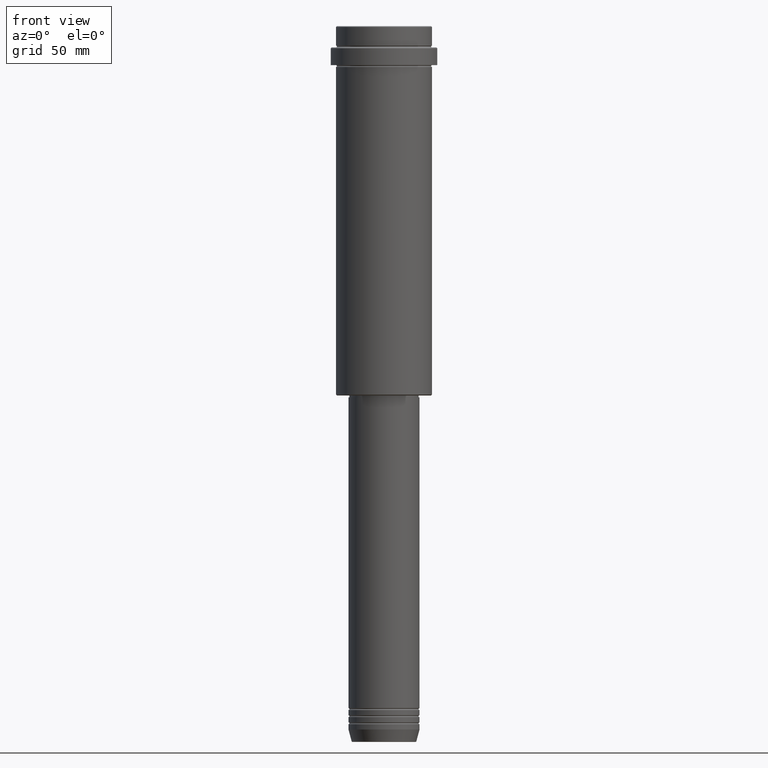
[diagram: clean part render]
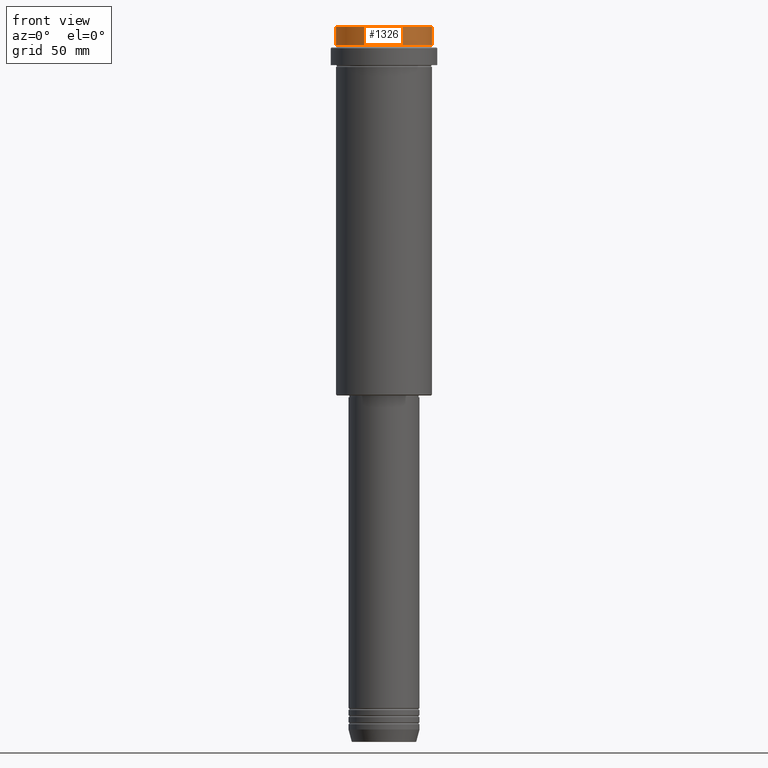
[diagram: same view with one face highlighted and labeled with its STEP entity id]
A machine part, front view. The second image highlights one B-rep face of the part: STEP entity #1326.
In plain terms, the highlighted cylindrical surface (partial cylindrical patch) has radius 27 mm, axis along (-0, -0, 1).
Its self-contained STEP definition (entity closure, byte-faithful):
#39 = DIRECTION ( 'NONE',  ( 1.000000000000000000, 0.000000000000000000, 0.000000000000000000 ) ) ;
#45 = VERTEX_POINT ( 'NONE', #982 ) ;
#115 = CARTESIAN_POINT ( 'NONE',  ( -26.99999999999999645, 3.306546357697853339E-15, -11.00000000000000178 ) ) ;
#119 = EDGE_CURVE ( 'NONE', #908, #651, #1194, .T. ) ;
#140 = DIRECTION ( 'NONE',  ( -0.000000000000000000, -0.000000000000000000, 1.000000000000000000 ) ) ;
#217 = CARTESIAN_POINT ( 'NONE',  ( 0.000000000000000000, 0.000000000000000000, 0.000000000000000000 ) ) ;
#223 = LINE ( 'NONE', #1216, #298 ) ;
#240 = DIRECTION ( 'NONE',  ( 0.000000000000000000, 0.000000000000000000, -1.000000000000000000 ) ) ;
#298 = VECTOR ( 'NONE', #500, 1000.000000000000000 ) ;
#406 = EDGE_CURVE ( 'NONE', #908, #45, #223, .T. ) ;
#466 = AXIS2_PLACEMENT_3D ( 'NONE', #217, #140, #1080 ) ;
#500 = DIRECTION ( 'NONE',  ( -0.000000000000000000, -0.000000000000000000, 1.000000000000000000 ) ) ;
#573 = VECTOR ( 'NONE', #922, 1000.000000000000000 ) ;
#597 = AXIS2_PLACEMENT_3D ( 'NONE', #696, #1012, #39 ) ;
#600 = DIRECTION ( 'NONE',  ( 1.000000000000000000, 0.000000000000000000, 0.000000000000000000 ) ) ;
#651 = VERTEX_POINT ( 'NONE', #756 ) ;
#661 = ORIENTED_EDGE ( 'NONE', *, *, #1107, .T. ) ;
#677 = EDGE_LOOP ( 'NONE', ( #1179, #988, #1230, #661 ) ) ;
#682 = CIRCLE ( 'NONE', #1151, 26.99999999999999645 ) ;
#696 = CARTESIAN_POINT ( 'NONE',  ( 0.000000000000000000, 0.000000000000000000, -11.00000000000000178 ) ) ;
#744 = CARTESIAN_POINT ( 'NONE',  ( 26.99999999999999645, 0.000000000000000000, -0.5000000000000316414 ) ) ;
#756 = CARTESIAN_POINT ( 'NONE',  ( 26.99999999999999645, 0.000000000000000000, -11.00000000000000178 ) ) ;
#838 = VERTEX_POINT ( 'NONE', #744 ) ;
#908 = VERTEX_POINT ( 'NONE', #115 ) ;
#917 = CARTESIAN_POINT ( 'NONE',  ( 26.99999999999999645, 0.000000000000000000, 0.000000000000000000 ) ) ;
#922 = DIRECTION ( 'NONE',  ( -0.000000000000000000, -0.000000000000000000, 1.000000000000000000 ) ) ;
#982 = CARTESIAN_POINT ( 'NONE',  ( -26.99999999999999645, 3.306546357697853339E-15, -0.5000000000000316414 ) ) ;
#988 = ORIENTED_EDGE ( 'NONE', *, *, #119, .T. ) ;
#1012 = DIRECTION ( 'NONE',  ( -0.000000000000000000, -0.000000000000000000, 1.000000000000000000 ) ) ;
#1080 = DIRECTION ( 'NONE',  ( 1.000000000000000000, 0.000000000000000000, 0.000000000000000000 ) ) ;
#1086 = EDGE_CURVE ( 'NONE', #651, #838, #1137, .T. ) ;
#1107 = EDGE_CURVE ( 'NONE', #838, #45, #682, .T. ) ;
#1137 = LINE ( 'NONE', #917, #573 ) ;
#1151 = AXIS2_PLACEMENT_3D ( 'NONE', #1224, #240, #600 ) ;
#1176 = CYLINDRICAL_SURFACE ( 'NONE', #466, 26.99999999999999645 ) ;
#1179 = ORIENTED_EDGE ( 'NONE', *, *, #406, .F. ) ;
#1194 = CIRCLE ( 'NONE', #597, 26.99999999999999645 ) ;
#1216 = CARTESIAN_POINT ( 'NONE',  ( -26.99999999999999645, 3.306546357697853339E-15, 0.000000000000000000 ) ) ;
#1224 = CARTESIAN_POINT ( 'NONE',  ( 0.000000000000000000, 0.000000000000000000, -0.5000000000000316414 ) ) ;
#1230 = ORIENTED_EDGE ( 'NONE', *, *, #1086, .T. ) ;
#1326 = ADVANCED_FACE ( 'NONE', ( #1396 ), #1176, .T. ) ;
#1396 = FACE_OUTER_BOUND ( 'NONE', #677, .T. ) ;